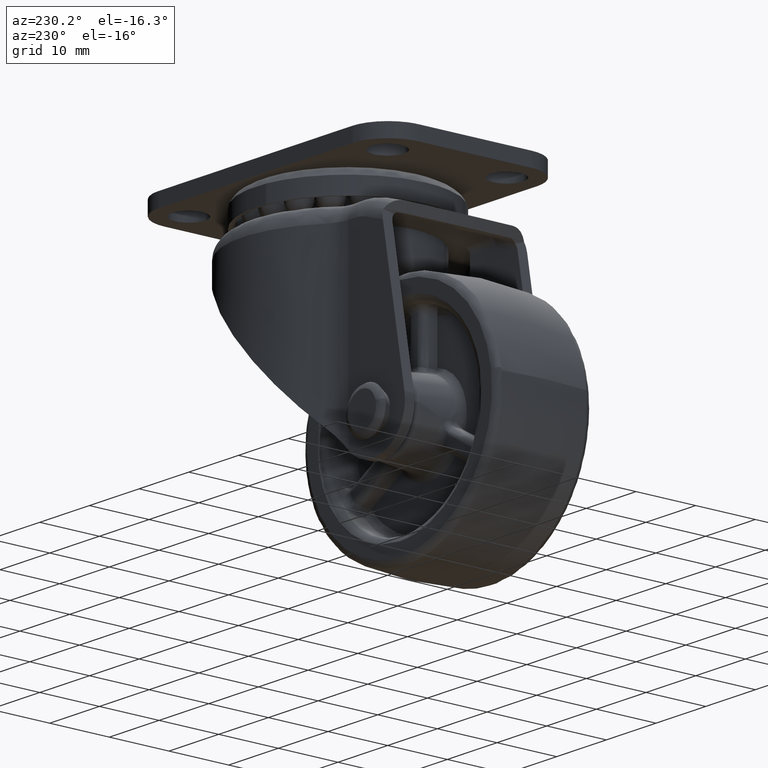
[diagram: clean part render]
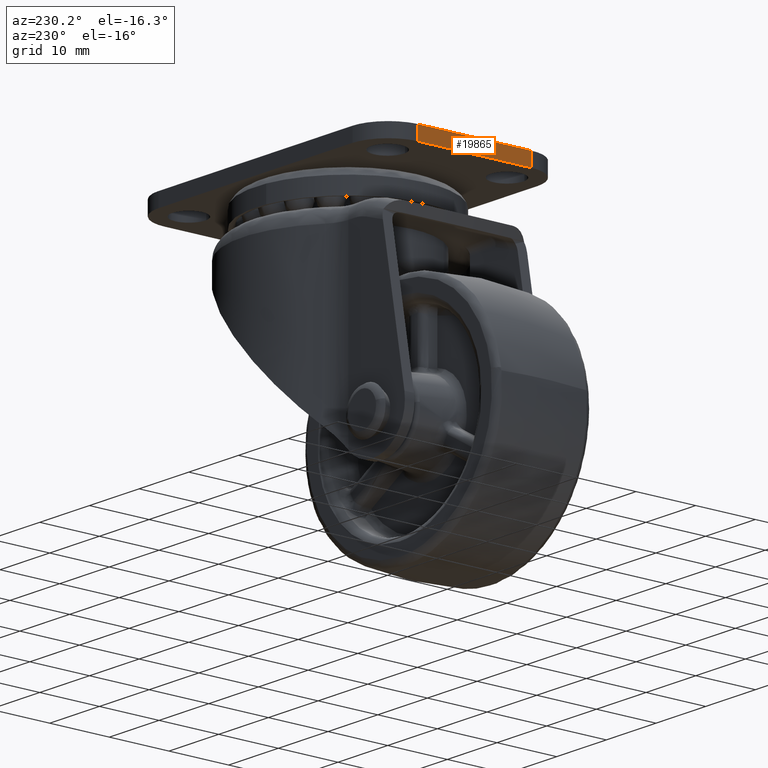
[diagram: same view with one face highlighted and labeled with its STEP entity id]
A machine part, auxiliary view. The second image highlights one B-rep face of the part: STEP entity #19865.
In plain terms, the highlighted face is a freeform B-spline surface patch.
Its self-contained STEP definition (entity closure, byte-faithful):
#19787=CARTESIAN_POINT('',(-5.500000000000000,-9.500000000000000,35.700001000000050));
#19788=VERTEX_POINT('',#19787);
#19813=CARTESIAN_POINT('',(-5.500000000000000,-9.500000000000000,38.0));
#19814=VERTEX_POINT('',#19813);
#19830=CARTESIAN_POINT('',(-5.500000000000000,-9.500000000000000,38.0));
#19831=CARTESIAN_POINT('',(-5.500000000000000,-9.500000000000000,35.700001000000050));
#19832=QUASI_UNIFORM_CURVE('',1,(#19830,#19831),.UNSPECIFIED.,.F.,.U.);
#19833=EDGE_CURVE('',#19814,#19788,#19832,.T.);
#19838=CARTESIAN_POINT('',(-5.500000000000000,-10.449050104523019,35.585115795318963));
#19839=CARTESIAN_POINT('',(-5.500000000000000,10.449053443946850,35.585115795318963));
#19840=CARTESIAN_POINT('',(-5.500000000000000,-10.449050104523019,38.114885019608749));
#19841=CARTESIAN_POINT('',(-5.500000000000000,10.449053443946850,38.114885019608749));
#19842=B_SPLINE_SURFACE_WITH_KNOTS('',1,1,((#19838,#19840),(#19839,#19841)),.UNSPECIFIED.,.F.,.F.,.U.,(2,2),(2,2),(0.0,20.898103548469869),(0.0,2.529769224289794),.UNSPECIFIED.);
#19843=CARTESIAN_POINT('',(-5.499999999998540,9.500004188790211,35.700001000000050));
#19844=VERTEX_POINT('',#19843);
#19845=CARTESIAN_POINT('',(-5.499999999998540,9.500004188790211,35.700001000000050));
#19846=CARTESIAN_POINT('',(-5.500000000000000,-9.500000000000000,35.700001000000050));
#19847=QUASI_UNIFORM_CURVE('',1,(#19845,#19846),.UNSPECIFIED.,.F.,.U.);
#19848=EDGE_CURVE('',#19844,#19788,#19847,.T.);
#19849=ORIENTED_EDGE('',*,*,#19848,.T.);
#19850=ORIENTED_EDGE('',*,*,#19833,.F.);
#19851=CARTESIAN_POINT('',(-5.499999999998540,9.500004188790211,38.0));
#19852=VERTEX_POINT('',#19851);
#19853=CARTESIAN_POINT('',(-5.499999999998540,9.500004188790211,38.0));
#19854=CARTESIAN_POINT('',(-5.500000000000000,-9.500000000000000,38.0));
#19855=QUASI_UNIFORM_CURVE('',1,(#19853,#19854),.UNSPECIFIED.,.F.,.U.);
#19856=EDGE_CURVE('',#19852,#19814,#19855,.T.);
#19857=ORIENTED_EDGE('',*,*,#19856,.F.);
#19858=CARTESIAN_POINT('',(-5.499999999998540,9.500004188790211,38.0));
#19859=CARTESIAN_POINT('',(-5.499999999998540,9.500004188790211,35.700001000000050));
#19860=QUASI_UNIFORM_CURVE('',1,(#19858,#19859),.UNSPECIFIED.,.F.,.U.);
#19861=EDGE_CURVE('',#19852,#19844,#19860,.T.);
#19862=ORIENTED_EDGE('',*,*,#19861,.T.);
#19863=EDGE_LOOP('',(#19849,#19850,#19857,#19862));
#19864=FACE_OUTER_BOUND('',#19863,.T.);
#19865=ADVANCED_FACE('',(#19864),#19842,.F.);